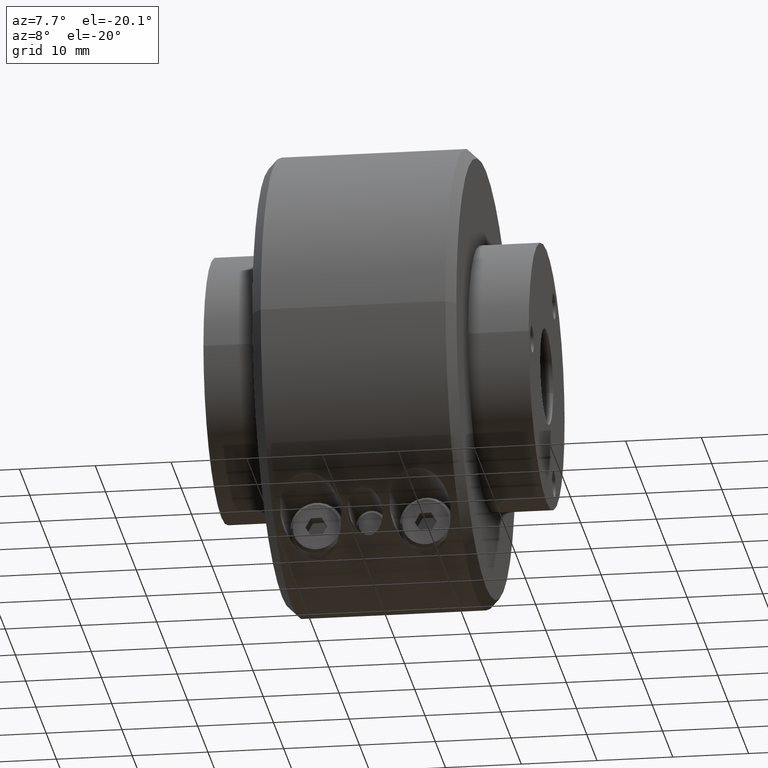
[diagram: clean part render]
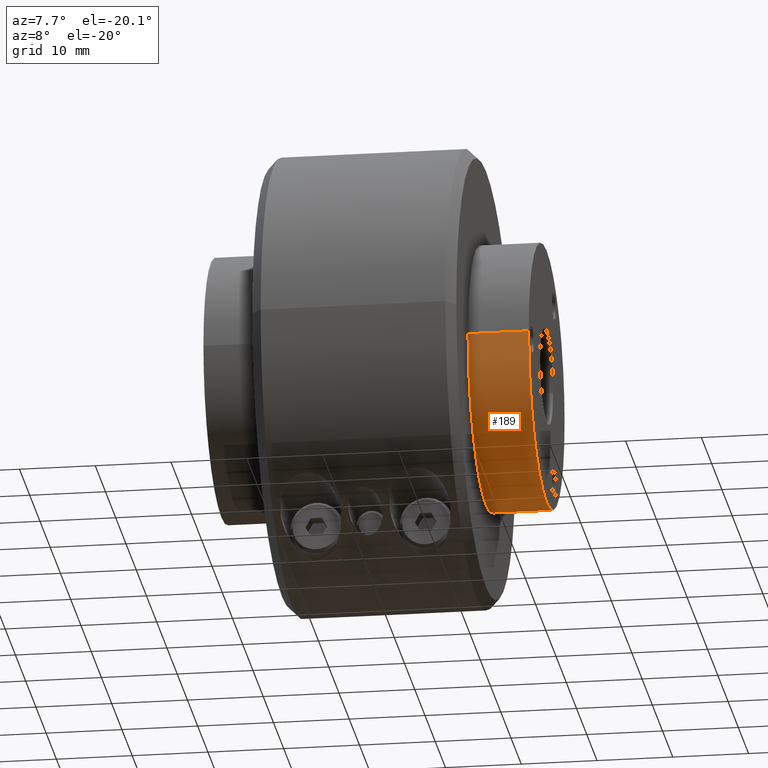
[diagram: same view with one face highlighted and labeled with its STEP entity id]
A machine part, auxiliary view. The second image highlights one B-rep face of the part: STEP entity #189.
In plain terms, the highlighted cylindrical surface (partial cylindrical patch) has radius 17.526 mm, axis along (-1, -0, -0).
Its self-contained STEP definition (entity closure, byte-faithful):
#1 = ORIENTED_EDGE ( 'NONE', *, *, #1738, .T. ) ;
#48 = ORIENTED_EDGE ( 'NONE', *, *, #1756, .F. ) ;
#78 = ORIENTED_EDGE ( 'NONE', *, *, #1811, .F. ) ;
#123 = ORIENTED_EDGE ( 'NONE', *, *, #1821, .T. ) ;
#150 = ORIENTED_EDGE ( 'NONE', *, *, #1765, .T. ) ;
#151 = ORIENTED_EDGE ( 'NONE', *, *, #1815, .T. ) ;
#176 = ORIENTED_EDGE ( 'NONE', *, *, #1763, .F. ) ;
#189 = ADVANCED_FACE ( 'NONE', ( #1995 ), #1996, .T. ) ;
#321 = CARTESIAN_POINT ( 'NONE',  ( 0.6875000000000000000, 0.6854048073948707500, -0.07949999999999972400 ) ) ;
#331 = CARTESIAN_POINT ( 'NONE',  ( 0.6769924724040581300, 0.6854048073948708600, -0.07949999999999973800 ) ) ;
#339 = CARTESIAN_POINT ( 'NONE',  ( 0.6665531187553575000, 0.6856583612621776100, -0.07738575527509884700 ) ) ;
#341 = DIRECTION ( 'NONE',  ( -1.000000000000000000, -1.224646799147353200E-016, -0.0000000000000000000 ) ) ;
#344 = CARTESIAN_POINT ( 'NONE',  ( 0.6474414512996572400, 0.6865080508332259700, -0.06944522754946469400 ) ) ;
#348 = CARTESIAN_POINT ( 'NONE',  ( 0.6385873904099702600, 0.6871091322371947200, -0.06352212685604131900 ) ) ;
#351 = CARTESIAN_POINT ( 'NONE',  ( 0.6276063965751453900, 0.6880070386906842500, -0.05253398674279016100 ) ) ;
#356 = CARTESIAN_POINT ( 'NONE',  ( 0.6242549340664156300, 0.6883105848088314500, -0.04844852820560480900 ) ) ;
#362 = CARTESIAN_POINT ( 'NONE',  ( 0.6184916765099023300, 0.6888640442829380200, -0.03981268063467667500 ) ) ;
#369 = CARTESIAN_POINT ( 'NONE',  ( 0.6160520616089413300, 0.6891158304681246300, -0.03524993368294344200 ) ) ;
#375 = CARTESIAN_POINT ( 'NONE',  ( 0.6120644702303100800, 0.6895406725154612500, -0.02562901818936136700 ) ) ;
#378 = CARTESIAN_POINT ( 'NONE',  ( 0.6105355678964138300, 0.6897117273886871300, -0.02058052001513324700 ) ) ;
#381 = CARTESIAN_POINT ( 'NONE',  ( -0.8450000000000003100, 0.6899999999999997200, 8.450062914116734400E-017 ) ) ;
#382 = CARTESIAN_POINT ( 'NONE',  ( 0.6085157231238367300, 0.6899400402079224300, -0.01041948268727358800 ) ) ;
#386 = CARTESIAN_POINT ( 'NONE',  ( 0.6080000000000002100, 0.6899999999999998400, -0.005253488210738030900 ) ) ;
#408 = CARTESIAN_POINT ( 'NONE',  ( 0.6080000000000002100, 0.6899999999999998400, 8.457137593550618900E-017 ) ) ;
#669 = CARTESIAN_POINT ( 'NONE',  ( -0.8450000000000000800, 0.0000000000000000000, 0.0000000000000000000 ) ) ;
#673 = DIRECTION ( 'NONE',  ( -1.000000000000000000, -1.224646799147353200E-016, -0.0000000000000000000 ) ) ;
#674 = DIRECTION ( 'NONE',  ( 1.979599995408887100E-016, -1.000000000000000000, 0.0000000000000000000 ) ) ;
#808 = VERTEX_POINT ( 'NONE', #1538 ) ;
#814 = DIRECTION ( 'NONE',  ( 9.897999977044435600E-017, -1.000000000000000000, 0.0000000000000000000 ) ) ;
#825 = VERTEX_POINT ( 'NONE', #1547 ) ;
#839 = VERTEX_POINT ( 'NONE', #1556 ) ;
#845 = CARTESIAN_POINT ( 'NONE',  ( 0.6927586790660661400, 0.6854048073948708600, -0.07949999999999973800 ) ) ;
#862 = VERTEX_POINT ( 'NONE', #1568 ) ;
#866 = VERTEX_POINT ( 'NONE', #1570 ) ;
#887 = VERTEX_POINT ( 'NONE', #1584 ) ;
#919 = VERTEX_POINT ( 'NONE', #1603 ) ;
#933 = CARTESIAN_POINT ( 'NONE',  ( 0.6875000000000000000, 0.6854048073948707500, -0.07949999999999972400 ) ) ;
#954 = CARTESIAN_POINT ( 'NONE',  ( 0.8450000000000000800, 2.069653090559027300E-016, 0.0000000000000000000 ) ) ;
#973 = CARTESIAN_POINT ( 'NONE',  ( 0.7569843383323725500, 0.6889065903402302700, -0.03999319487425924400 ) ) ;
#998 = DIRECTION ( 'NONE',  ( -1.000000000000000000, -1.224646799147353200E-016, -0.0000000000000000000 ) ) ;
#1013 = DIRECTION ( 'NONE',  ( 1.979599995408887400E-016, -1.000000000000000000, 0.0000000000000000000 ) ) ;
#1017 = CARTESIAN_POINT ( 'NONE',  ( 0.6979285711260405600, 0.6854652889936012600, -0.07898338026921958300 ) ) ;
#1036 = CARTESIAN_POINT ( 'NONE',  ( 0.5300000000000001400, 1.683889348827610800E-016, 0.0000000000000000000 ) ) ;
#1082 = CARTESIAN_POINT ( 'NONE',  ( 0.7359854684250146700, 0.6871040702124124900, -0.06321712949717420100 ) ) ;
#1113 = CARTESIAN_POINT ( 'NONE',  ( 0.7649118676151862600, 0.6897512697983130300, -0.02085501527371731700 ) ) ;
#1174 = CARTESIAN_POINT ( 'NONE',  ( 0.7510633543251886700, 0.6883071429146837600, -0.04886106255414674600 ) ) ;
#1209 = CARTESIAN_POINT ( 'NONE',  ( 0.7227792940674315800, 0.6862953077227168500, -0.07143378283997237100 ) ) ;
#1234 = CARTESIAN_POINT ( 'NONE',  ( 0.7669999999999997900, 0.6900000000000000600, -0.01038279485071343400 ) ) ;
#1259 = CARTESIAN_POINT ( 'NONE',  ( 0.7400727427615846300, 0.6874084022799342700, -0.05986000401162418900 ) ) ;
#1261 = CARTESIAN_POINT ( 'NONE',  ( 0.7273449771826925300, 0.6865484577659174400, -0.06899002756606401100 ) ) ;
#1281 = CARTESIAN_POINT ( 'NONE',  ( 0.7669999999999997900, 0.6899999999999998400, 8.450062808481487400E-017 ) ) ;
#1285 = DIRECTION ( 'NONE',  ( -1.000000000000000000, -1.224646799147353200E-016, -0.0000000000000000000 ) ) ;
#1299 = CARTESIAN_POINT ( 'NONE',  ( 0.7080983144434218600, 0.6856954118829006200, -0.07695998243615277700 ) ) ;
#1316 = CARTESIAN_POINT ( 'NONE',  ( 0.7131512343571103600, 0.6858677763507812200, -0.07542829771830493500 ) ) ;
#1538 = CARTESIAN_POINT ( 'NONE',  ( 0.6875000000000000000, 0.6854048073948707500, -0.07949999999999972400 ) ) ;
#1547 = CARTESIAN_POINT ( 'NONE',  ( 0.6080000000000002100, 0.6899999999999998400, 8.457137593550618900E-017 ) ) ;
#1556 = CARTESIAN_POINT ( 'NONE',  ( 0.5300000000000001400, -0.6899999999999996100, 0.0000000000000000000 ) ) ;
#1568 = CARTESIAN_POINT ( 'NONE',  ( 0.5300000000000000300, 0.6899999999999998400, 8.450062914116734400E-017 ) ) ;
#1570 = CARTESIAN_POINT ( 'NONE',  ( 0.8449999999999999700, 0.6899999999999998400, 8.450062914116734400E-017 ) ) ;
#1584 = CARTESIAN_POINT ( 'NONE',  ( 0.7669999999999997900, 0.6899999999999998400, 8.450062808481487400E-017 ) ) ;
#1603 = CARTESIAN_POINT ( 'NONE',  ( 0.8450000000000003100, -0.6899999999999992800, 0.0000000000000000000 ) ) ;
#1738 = EDGE_CURVE ( 'NONE', #825, #808, #3019, .T. ) ;
#1756 = EDGE_CURVE ( 'NONE', #825, #862, #2573, .T. ) ;
#1763 = EDGE_CURVE ( 'NONE', #866, #887, #2585, .T. ) ;
#1765 = EDGE_CURVE ( 'NONE', #919, #839, #2576, .T. ) ;
#1811 = EDGE_CURVE ( 'NONE', #862, #839, #2637, .T. ) ;
#1815 = EDGE_CURVE ( 'NONE', #866, #919, #2640, .T. ) ;
#1821 = EDGE_CURVE ( 'NONE', #808, #887, #3017, .T. ) ;
#1842 = AXIS2_PLACEMENT_3D ( 'NONE', #669, #673, #674 ) ;
#1995 = FACE_OUTER_BOUND ( 'NONE', #3785, .T. ) ;
#1996 = CYLINDRICAL_SURFACE ( 'NONE', #1842, 0.6899999999999997200 ) ;
#2407 = AXIS2_PLACEMENT_3D ( 'NONE', #1036, #998, #814 ) ;
#2409 = AXIS2_PLACEMENT_3D ( 'NONE', #954, #1285, #1013 ) ;
#2568 = VECTOR ( 'NONE', #3492, 39.37007874015748100 ) ;
#2573 = LINE ( 'NONE', #381, #2575 ) ;
#2575 = VECTOR ( 'NONE', #341, 39.37007874015748100 ) ;
#2576 = LINE ( 'NONE', #3476, #2584 ) ;
#2584 = VECTOR ( 'NONE', #3480, 39.37007874015748100 ) ;
#2585 = LINE ( 'NONE', #3497, #2568 ) ;
#2637 = CIRCLE ( 'NONE', #2407, 0.6899999999999997200 ) ;
#2640 = CIRCLE ( 'NONE', #2409, 0.6899999999999996100 ) ;
#3017 = B_SPLINE_CURVE_WITH_KNOTS ( 'NONE', 3,
 ( #933, #845, #1017, #1299, #1316, #1209, #1261, #1082, #1259, #1174, #973, #1113, #1234, #1281 ),
 .UNSPECIFIED., .F., .F.,
 ( 4, 2, 2, 2, 2, 2, 4 ),
 ( 0.0000000000000000000, 0.0003949980273147794800, 0.0007899960546295589600, 0.001184994081944338400, 0.001579992109259117900, 0.002369988163888676500, 0.003159984218518234600 ),
 .UNSPECIFIED. ) ;
#3019 = B_SPLINE_CURVE_WITH_KNOTS ( 'NONE', 3,
 ( #408, #386, #382, #378, #375, #369, #362, #356, #351, #348, #344, #339, #331, #321 ),
 .UNSPECIFIED., .F., .F.,
 ( 4, 2, 2, 2, 2, 2, 4 ),
 ( 0.009478457512335666100, 0.009873086336438600600, 0.01026771516054153500, 0.01066234398464446800, 0.01105697280874740100, 0.01184623045695325700, 0.01263548810515911400 ),
 .UNSPECIFIED. ) ;
#3476 = CARTESIAN_POINT ( 'NONE',  ( -0.8449999999999999700, -0.6899999999999997200, 0.0000000000000000000 ) ) ;
#3480 = DIRECTION ( 'NONE',  ( -1.000000000000000000, -1.224646799147353200E-016, -0.0000000000000000000 ) ) ;
#3492 = DIRECTION ( 'NONE',  ( -1.000000000000000000, -1.224646799147353200E-016, -0.0000000000000000000 ) ) ;
#3497 = CARTESIAN_POINT ( 'NONE',  ( -0.8450000000000003100, 0.6899999999999997200, 8.450062914116734400E-017 ) ) ;
#3785 = EDGE_LOOP ( 'NONE', ( #176, #151, #150, #78, #48, #1, #123 ) ) ;